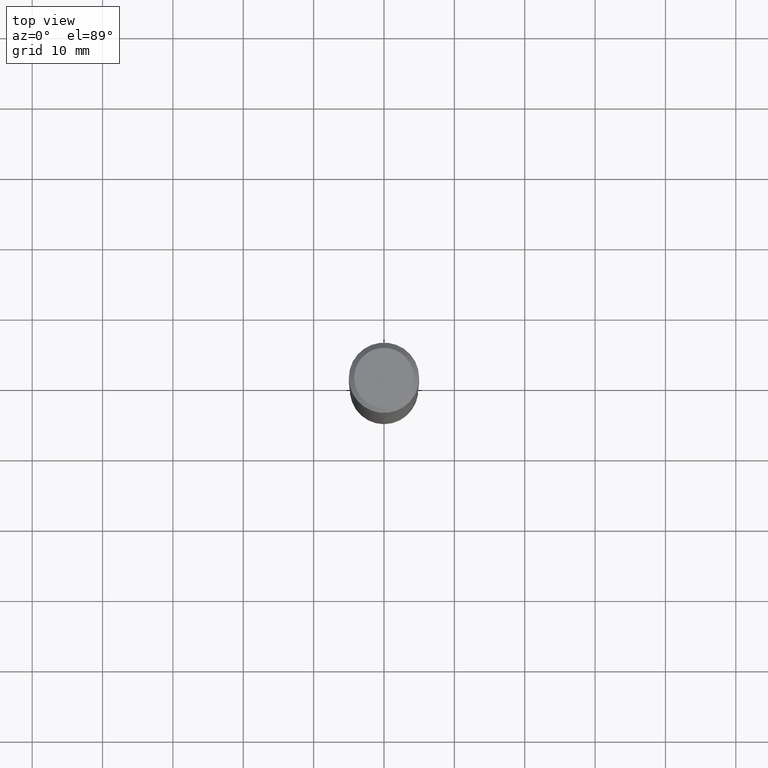
[diagram: clean part render]
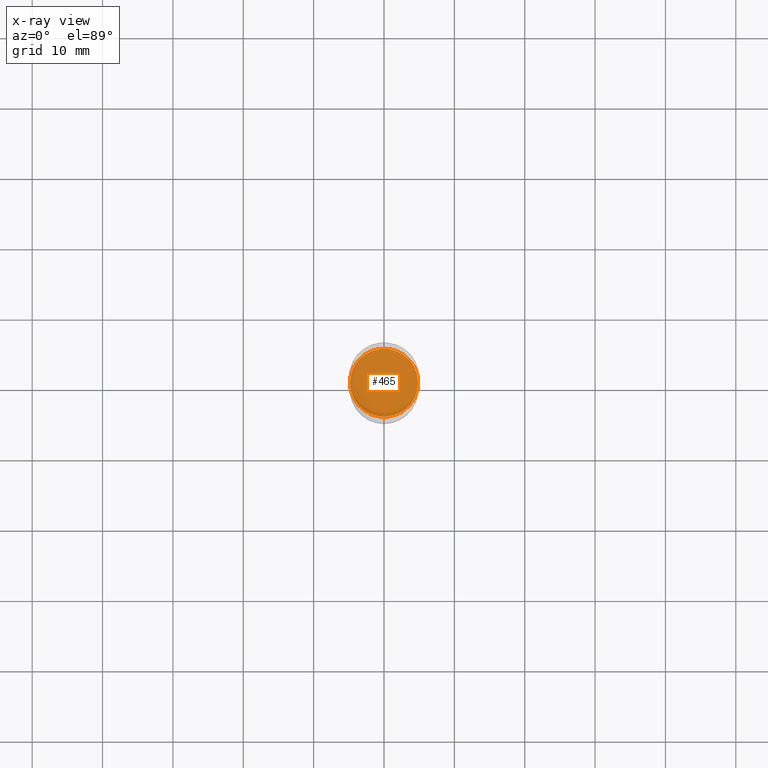
[diagram: x-ray — body ghosted, one internal face saturated and labeled with its STEP entity id]
A machine part, top view, then the same camera in x-ray: the body is ghosted and one INTERNAL B-rep face — a face not visible from any outside direction — is saturated and labeled: STEP entity #465.
In plain terms, the highlighted planar face has unit normal (-0, 0, 1).
Its self-contained STEP definition (entity closure, byte-faithful):
#53 = FACE_OUTER_BOUND ( 'NONE', #440, .T. ) ;
#90 = CARTESIAN_POINT ( 'NONE',  ( 4.043338124146504977E-29, -5.772815245643255982E-15, -1.653399999999999981 ) ) ;
#93 = DIRECTION ( 'NONE',  ( -2.438088387897960049E-29, 3.491481338843145188E-15, 1.000000000000000000 ) ) ;
#99 = DIRECTION ( 'NONE',  ( 1.000000000000000000, -6.982962677686266711E-15, 0.000000000000000000 ) ) ;
#118 = AXIS2_PLACEMENT_3D ( 'NONE', #90, #171, #475 ) ;
#171 = DIRECTION ( 'NONE',  ( -2.445468806185136597E-29, 3.491481338843145583E-15, 1.000000000000000000 ) ) ;
#173 = VERTEX_POINT ( 'NONE', #319 ) ;
#191 = DIRECTION ( 'NONE',  ( -2.445468806185136597E-29, 3.491481338843145583E-15, 1.000000000000000000 ) ) ;
#192 = EDGE_CURVE ( 'NONE', #489, #173, #414, .T. ) ;
#199 = ORIENTED_EDGE ( 'NONE', *, *, #192, .F. ) ;
#215 = CARTESIAN_POINT ( 'NONE',  ( 0.1904500000000000082, -7.102720487608605521E-15, -1.653399999999999981 ) ) ;
#218 = PLANE ( 'NONE',  #286 ) ;
#286 = AXIS2_PLACEMENT_3D ( 'NONE', #434, #93, #328 ) ;
#319 = CARTESIAN_POINT ( 'NONE',  ( -0.1904500000000000082, -4.416937378214033130E-15, -1.653399999999999981 ) ) ;
#328 = DIRECTION ( 'NONE',  ( 1.000000000000000000, -6.982962677686265922E-15, 4.876176775795935793E-29 ) ) ;
#343 = ORIENTED_EDGE ( 'NONE', *, *, #450, .F. ) ;
#378 = CARTESIAN_POINT ( 'NONE',  ( 4.043338124146504977E-29, -5.772815245643255982E-15, -1.653399999999999981 ) ) ;
#384 = CIRCLE ( 'NONE', #118, 0.1904500000000000082 ) ;
#414 = CIRCLE ( 'NONE', #420, 0.1904500000000000082 ) ;
#420 = AXIS2_PLACEMENT_3D ( 'NONE', #378, #191, #99 ) ;
#434 = CARTESIAN_POINT ( 'NONE',  ( 2.387212763515899356E-29, -8.144481022867982684E-15, -1.653399999999999981 ) ) ;
#440 = EDGE_LOOP ( 'NONE', ( #199, #343 ) ) ;
#450 = EDGE_CURVE ( 'NONE', #173, #489, #384, .T. ) ;
#465 = ADVANCED_FACE ( 'NONE', ( #53 ), #218, .F. ) ;
#475 = DIRECTION ( 'NONE',  ( 1.000000000000000000, -6.982962677686266711E-15, 0.000000000000000000 ) ) ;
#489 = VERTEX_POINT ( 'NONE', #215 ) ;